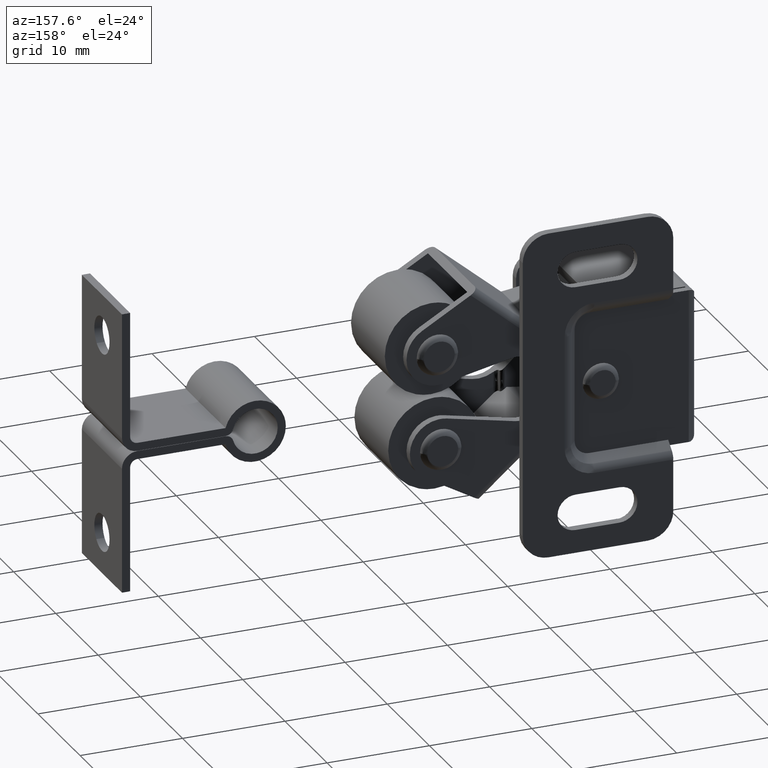
[diagram: clean part render]
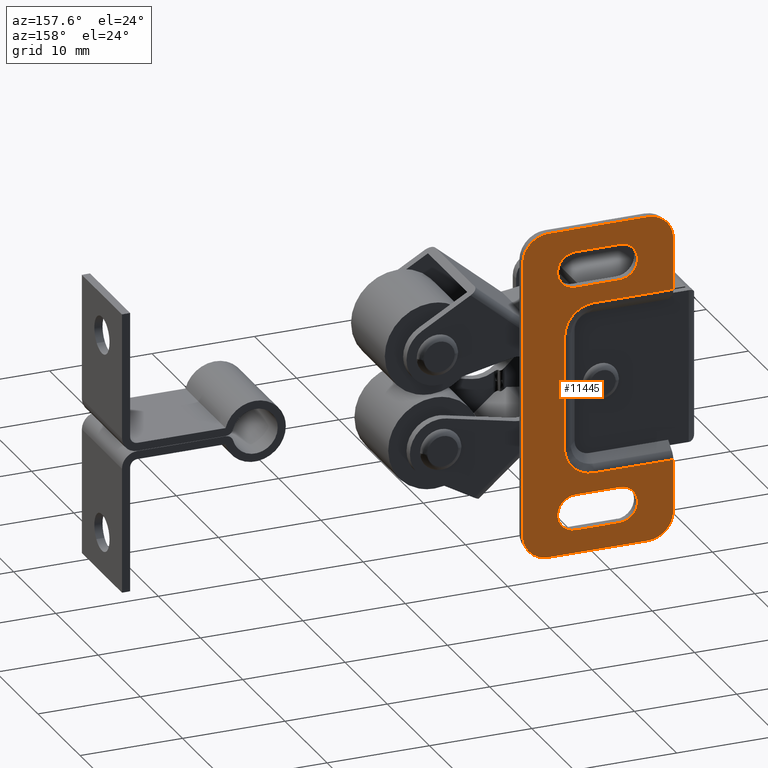
[diagram: same view with one face highlighted and labeled with its STEP entity id]
A machine part, auxiliary view. The second image highlights one B-rep face of the part: STEP entity #11445.
In plain terms, the highlighted face is a freeform B-spline surface patch.
Its self-contained STEP definition (entity closure, byte-faithful):
#10518=CARTESIAN_POINT('',(15.0,7.500000000000200,16.0));
#10519=VERTEX_POINT('',#10518);
#10520=CARTESIAN_POINT('',(17.500000000000000,7.500000000000200,13.500000000000000));
#10521=VERTEX_POINT('',#10520);
#10522=CARTESIAN_POINT('',(15.0,7.500000000000200,16.0));
#10523=CARTESIAN_POINT('',(15.286364359041050,7.500000000000211,16.000192427718009));
#10524=CARTESIAN_POINT('',(15.787339908738760,7.500000000000137,15.912943258176711));
#10525=CARTESIAN_POINT('',(16.411695875033029,7.500000000000220,15.593792375405410));
#10526=CARTESIAN_POINT('',(16.892539337064829,7.500000000000146,15.173887625152391));
#10527=CARTESIAN_POINT('',(17.225298078750320,7.500000000000171,14.688827998041139));
#10528=CARTESIAN_POINT('',(17.447172271846590,7.500000000000211,14.113556537717169));
#10529=CARTESIAN_POINT('',(17.500072212093890,7.500000000000188,13.724989760844030));
#10530=CARTESIAN_POINT('',(17.500000000000000,7.500000000000200,13.500000000000000));
#10531=B_SPLINE_CURVE_WITH_KNOTS('',3,(#10522,#10523,#10524,#10525,#10526,#10527,#10528,#10529,#10530),.UNSPECIFIED.,.F.,.U.,(4,1,1,1,1,1,4),(0.000000093626884,0.859031573901933,1.503324657829756,2.086208161121988,2.761178339133837,3.252063056334594,3.927015457196625),.UNSPECIFIED.);
#10532=EDGE_CURVE('',#10519,#10521,#10531,.T.);
#10578=CARTESIAN_POINT('',(2.800003000000105,7.500000000000200,13.500000000000000));
#10579=VERTEX_POINT('',#10578);
#10580=CARTESIAN_POINT('',(5.300003000000100,7.500000000000200,16.0));
#10581=VERTEX_POINT('',#10580);
#10582=CARTESIAN_POINT('',(2.800003000000105,7.500000000000200,13.500000000000000));
#10583=CARTESIAN_POINT('',(2.799993274128616,7.500000000000198,13.653393603655740));
#10584=CARTESIAN_POINT('',(2.831134984212427,7.500000000000195,13.990872199678970));
#10585=CARTESIAN_POINT('',(2.977490472272864,7.500000000000175,14.473322469147091));
#10586=CARTESIAN_POINT('',(3.264828905089107,7.500000000000181,14.995520656740711));
#10587=CARTESIAN_POINT('',(3.665844866090415,7.500000000000183,15.427237225760960));
#10588=CARTESIAN_POINT('',(4.159148713907764,7.500000000000181,15.743754545026491));
#10589=CARTESIAN_POINT('',(4.686446625940715,7.500000000000193,15.947166839191910));
#10590=CARTESIAN_POINT('',(5.075012047667549,7.500000000000191,16.000079009948539));
#10591=CARTESIAN_POINT('',(5.300003000000100,7.500000000000200,16.0));
#10592=B_SPLINE_CURVE_WITH_KNOTS('',3,(#10582,#10583,#10584,#10585,#10586,#10587,#10588,#10589,#10590,#10591),.UNSPECIFIED.,.F.,.U.,(4,1,1,1,1,1,1,4),(0.000000093619599,0.460185251630678,1.012433887369333,1.503324657827339,2.239625786401664,2.761178339133266,3.252063056334339,3.927015457196613),.UNSPECIFIED.);
#10593=EDGE_CURVE('',#10579,#10581,#10592,.T.);
#10639=CARTESIAN_POINT('',(5.300003000000100,7.500000000000200,-16.0));
#10640=VERTEX_POINT('',#10639);
#10641=CARTESIAN_POINT('',(2.800003000000105,7.500000000000200,-13.500000000000000));
#10642=VERTEX_POINT('',#10641);
#10643=CARTESIAN_POINT('',(5.300003000000100,7.500000000000200,-16.0));
#10644=CARTESIAN_POINT('',(5.105700094511433,7.500000000000199,-16.000039938621210));
#10645=CARTESIAN_POINT('',(4.768245326871917,7.500000000000176,-15.960448202411330));
#10646=CARTESIAN_POINT('',(4.251667516666283,7.500000000000170,-15.789833650864800));
#10647=CARTESIAN_POINT('',(3.815480421984535,7.500000000000170,-15.535602605517729));
#10648=CARTESIAN_POINT('',(3.414444545729188,7.500000000000161,-15.167580866215310));
#10649=CARTESIAN_POINT('',(3.064714875869248,7.500000000000149,-14.683983640821671));
#10650=CARTESIAN_POINT('',(2.844906125024445,7.500000000000239,-14.103381981033200));
#10651=CARTESIAN_POINT('',(2.799990668613424,7.500000000000147,-13.673843524522550));
#10652=CARTESIAN_POINT('',(2.800003000000105,7.500000000000200,-13.500000000000000));
#10653=B_SPLINE_CURVE_WITH_KNOTS('',3,(#10643,#10644,#10645,#10646,#10647,#10648,#10649,#10650,#10651,#10652),.UNSPECIFIED.,.F.,.U.,(4,1,1,1,1,1,1,4),(0.000000093620197,0.582904044599788,1.012433887369916,1.626037914768931,2.086208161121198,2.638460174722054,3.405472592294406,3.927015457196608),.UNSPECIFIED.);
#10654=EDGE_CURVE('',#10640,#10642,#10653,.T.);
#10699=CARTESIAN_POINT('',(17.500000000000000,7.500000000000200,-13.500000000000000));
#10700=VERTEX_POINT('',#10699);
#10701=CARTESIAN_POINT('',(15.0,7.500000000000200,-16.0));
#10702=VERTEX_POINT('',#10701);
#10703=CARTESIAN_POINT('',(17.500000000000000,7.500000000000200,-13.500000000000000));
#10704=CARTESIAN_POINT('',(17.500044445175408,7.500000000000202,-13.694304060719141));
#10705=CARTESIAN_POINT('',(17.460430479872461,7.500000000000185,-14.031748134046641));
#10706=CARTESIAN_POINT('',(17.273804554259080,7.500000000000166,-14.597113680800719));
#10707=CARTESIAN_POINT('',(16.955828022843530,7.500000000000182,-15.106064261523700));
#10708=CARTESIAN_POINT('',(16.485405256964370,7.500000000000167,-15.537627719186959));
#10709=CARTESIAN_POINT('',(16.010927514237899,7.500000000000187,-15.806405735201880));
#10710=CARTESIAN_POINT('',(15.511313099867669,7.500000000000142,-15.964657008544140));
#10711=CARTESIAN_POINT('',(15.173848092341689,7.500000000000210,-16.000023302451531));
#10712=CARTESIAN_POINT('',(15.0,7.500000000000200,-16.0));
#10713=B_SPLINE_CURVE_WITH_KNOTS('',3,(#10703,#10704,#10705,#10706,#10707,#10708,#10709,#10710,#10711,#10712),.UNSPECIFIED.,.F.,.U.,(4,1,1,1,1,1,1,4),(0.000000093621064,0.582904044600343,1.012433887370199,1.779451322858204,2.362333669887484,2.914581553612443,3.405472592294414,3.927015457196622),.UNSPECIFIED.);
#10714=EDGE_CURVE('',#10700,#10702,#10713,.T.);
#10752=CARTESIAN_POINT('',(12.350006000000000,7.500000000000200,10.250000000000000));
#10753=VERTEX_POINT('',#10752);
#10759=CARTESIAN_POINT('',(8.050003030543241,7.500000000000000,10.250000000000000));
#10760=VERTEX_POINT('',#10759);
#10761=CARTESIAN_POINT('',(8.050003030543241,7.500000000000000,10.250000000000000));
#10762=CARTESIAN_POINT('',(12.350006000000000,7.500000000000200,10.250000000000000));
#10763=QUASI_UNIFORM_CURVE('',1,(#10761,#10762),.UNSPECIFIED.,.F.,.U.);
#10764=EDGE_CURVE('',#10760,#10753,#10763,.T.);
#10800=CARTESIAN_POINT('',(6.300003000000000,7.499999999999999,11.999999995656850));
#10801=VERTEX_POINT('',#10800);
#10802=CARTESIAN_POINT('',(6.300003000000000,7.499999999999999,11.999999995656850));
#10803=CARTESIAN_POINT('',(6.299844040270610,7.500000000000002,11.799532860111180));
#10804=CARTESIAN_POINT('',(6.349763944044633,7.499999999999984,11.513296306718450));
#10805=CARTESIAN_POINT('',(6.512688185877785,7.500000000000015,11.145812009281100));
#10806=CARTESIAN_POINT('',(6.688508365383500,7.499999999999993,10.882648974007440));
#10807=CARTESIAN_POINT('',(6.922486888998194,7.500000000000000,10.648691931740810));
#10808=CARTESIAN_POINT('',(7.195017562538005,7.500000000000023,10.461709970379850));
#10809=CARTESIAN_POINT('',(7.563275677617749,7.499999999999965,10.298434586915500));
#10810=CARTESIAN_POINT('',(7.863866579505843,7.500000000000028,10.249899275661329));
#10811=CARTESIAN_POINT('',(8.050003030543241,7.500000000000000,10.250000000000000));
#10812=B_SPLINE_CURVE_WITH_KNOTS('',3,(#10802,#10803,#10804,#10805,#10806,#10807,#10808,#10809,#10810,#10811),.UNSPECIFIED.,.F.,.U.,(4,1,1,1,1,1,1,4),(0.000000047595388,0.601334658014585,0.859058626618052,1.202681198041316,1.546277839256664,1.846950557402861,2.190583304770051,2.748962567353600),.UNSPECIFIED.);
#10813=EDGE_CURVE('',#10801,#10760,#10812,.T.);
#10815=CARTESIAN_POINT('',(8.050003000000000,7.500000000000000,13.750000000000000));
#10816=VERTEX_POINT('',#10815);
#10817=CARTESIAN_POINT('',(8.050003000000000,7.500000000000000,13.750000000000000));
#10818=CARTESIAN_POINT('',(7.849549406468809,7.500000000000004,13.750127609910029));
#10819=CARTESIAN_POINT('',(7.448740001295882,7.499999999999996,13.680384003729330));
#10820=CARTESIAN_POINT('',(6.993617437993758,7.500000000000004,13.422649232558239));
#10821=CARTESIAN_POINT('',(6.678355270521767,7.499999999999996,13.107156008907410));
#10822=CARTESIAN_POINT('',(6.458343832088691,7.500000000000006,12.769111292909720));
#10823=CARTESIAN_POINT('',(6.326771394923079,7.499999999999999,12.386565433923669));
#10824=CARTESIAN_POINT('',(6.299993802596385,7.499999999999999,12.114531175847819));
#10825=CARTESIAN_POINT('',(6.300003000000000,7.499999999999999,11.999999995656850));
#10826=B_SPLINE_CURVE_WITH_KNOTS('',3,(#10817,#10818,#10819,#10820,#10821,#10822,#10823,#10824,#10825),.UNSPECIFIED.,.F.,.U.,(4,1,1,1,1,1,4),(0.000000047608833,0.601334655331386,1.202681192672064,1.546277832342248,1.932860579251838,2.405357078268964,2.748962555034370),.UNSPECIFIED.);
#10827=EDGE_CURVE('',#10816,#10801,#10826,.T.);
#10871=CARTESIAN_POINT('',(12.350006000000000,7.500000000000000,13.750000000000000));
#10872=VERTEX_POINT('',#10871);
#10873=CARTESIAN_POINT('',(12.350006000000000,7.500000000000000,13.750000000000000));
#10874=CARTESIAN_POINT('',(8.050003000000000,7.500000000000000,13.750000000000000));
#10875=QUASI_UNIFORM_CURVE('',1,(#10873,#10874),.UNSPECIFIED.,.F.,.U.);
#10876=EDGE_CURVE('',#10872,#10816,#10875,.T.);
#10912=CARTESIAN_POINT('',(14.100005999999480,7.500000000000000,12.000001351837810));
#10913=VERTEX_POINT('',#10912);
#10914=CARTESIAN_POINT('',(14.100005999999480,7.500000000000000,12.000001351837810));
#10915=CARTESIAN_POINT('',(14.100043963686140,7.499999999999999,12.143174588794221));
#10916=CARTESIAN_POINT('',(14.068196209507910,7.499999999999974,12.400867107856151));
#10917=CARTESIAN_POINT('',(13.942171264630939,7.499999999999972,12.753033833588651));
#10918=CARTESIAN_POINT('',(13.720398502605690,7.499999999999961,13.123329089225541));
#10919=CARTESIAN_POINT('',(13.373144196966161,7.499999999999967,13.453894904690150));
#10920=CARTESIAN_POINT('',(12.879682399146519,7.499999999999961,13.694658472255799));
#10921=CARTESIAN_POINT('',(12.536139609365790,7.500000000000000,13.750092091643969));
#10922=CARTESIAN_POINT('',(12.350006000000000,7.500000000000000,13.750000000000000));
#10923=B_SPLINE_CURVE_WITH_KNOTS('',3,(#10914,#10915,#10916,#10917,#10918,#10919,#10920,#10921,#10922),.UNSPECIFIED.,.F.,.U.,(4,1,1,1,1,1,4),(0.000000048541498,0.429521300534117,0.773149262181103,1.116778503429260,1.718086318133064,2.190582685528905,2.748961790649044),.UNSPECIFIED.);
#10924=EDGE_CURVE('',#10913,#10872,#10923,.T.);
#10926=CARTESIAN_POINT('',(12.350006000000000,7.500000000000200,10.250000000000000));
#10927=CARTESIAN_POINT('',(12.493178366209561,7.500000000000185,10.249967428030370));
#10928=CARTESIAN_POINT('',(12.750873820755210,7.500000000000201,10.281804254390959));
#10929=CARTESIAN_POINT('',(13.103038652149801,7.500000000000154,10.407835816298959));
#10930=CARTESIAN_POINT('',(13.473331231629849,7.500000000000023,10.629616861615480));
#10931=CARTESIAN_POINT('',(13.763829546071930,7.500000000000258,10.934755659843839));
#10932=CARTESIAN_POINT('',(13.971625597520610,7.499999999999948,11.312516727980110));
#10933=CARTESIAN_POINT('',(14.076036834354211,7.499999999999897,11.642077334571310));
#10934=CARTESIAN_POINT('',(14.100019123951300,7.500000000000128,11.885469064695650));
#10935=CARTESIAN_POINT('',(14.100005999999480,7.500000000000000,12.000001351837810));
#10936=B_SPLINE_CURVE_WITH_KNOTS('',3,(#10926,#10927,#10928,#10929,#10930,#10931,#10932,#10933,#10934,#10935),.UNSPECIFIED.,.F.,.U.,(4,1,1,1,1,1,1,4),(0.000000046685173,0.429521537306341,0.773149689322664,1.116779120351162,1.718087270682433,2.018769563416735,2.405357742947194,2.748963314523376),.UNSPECIFIED.);
#10937=EDGE_CURVE('',#10753,#10913,#10936,.T.);
#10977=CARTESIAN_POINT('',(12.350006000000000,7.500000000000200,-13.750000000000000));
#10978=VERTEX_POINT('',#10977);
#10984=CARTESIAN_POINT('',(8.050003030543241,7.500000000000000,-13.750000000000000));
#10985=VERTEX_POINT('',#10984);
#10986=CARTESIAN_POINT('',(8.050003030543241,7.500000000000000,-13.750000000000000));
#10987=CARTESIAN_POINT('',(12.350006000000000,7.500000000000200,-13.750000000000000));
#10988=QUASI_UNIFORM_CURVE('',1,(#10986,#10987),.UNSPECIFIED.,.F.,.U.);
#10989=EDGE_CURVE('',#10985,#10978,#10988,.T.);
#11025=CARTESIAN_POINT('',(6.300003000000000,7.499999999999999,-12.000000004343150));
#11026=VERTEX_POINT('',#11025);
#11027=CARTESIAN_POINT('',(6.300003000000000,7.499999999999999,-12.000000004343150));
#11028=CARTESIAN_POINT('',(6.299920043376861,7.499999999999994,-12.171816880337341));
#11029=CARTESIAN_POINT('',(6.342536764963867,7.500000000000009,-12.458108814938161));
#11030=CARTESIAN_POINT('',(6.507698694777678,7.499999999999998,-12.856848657605680));
#11031=CARTESIAN_POINT('',(6.765120226140053,7.499999999999996,-13.222527201107519));
#11032=CARTESIAN_POINT('',(7.138706171903277,7.500000000000016,-13.521516488455680));
#11033=CARTESIAN_POINT('',(7.591882394138827,7.499999999999972,-13.709127266767959));
#11034=CARTESIAN_POINT('',(7.892511963058009,7.500000000000044,-13.750052589615761));
#11035=CARTESIAN_POINT('',(8.050003030543241,7.500000000000000,-13.750000000000000));
#11036=B_SPLINE_CURVE_WITH_KNOTS('',3,(#11027,#11028,#11029,#11030,#11031,#11032,#11033,#11034,#11035),.UNSPECIFIED.,.F.,.U.,(4,1,1,1,1,1,4),(0.000000047592473,0.515430764799096,0.859058626616086,1.288581709666155,1.846950557401940,2.276493335289301,2.748962567353624),.UNSPECIFIED.);
#11037=EDGE_CURVE('',#11026,#10985,#11036,.T.);
#11039=CARTESIAN_POINT('',(8.050003000000000,7.500000000000000,-10.250000000000000));
#11040=VERTEX_POINT('',#11039);
#11041=CARTESIAN_POINT('',(8.050003000000000,7.500000000000000,-10.250000000000000));
#11042=CARTESIAN_POINT('',(7.906833043470302,7.500000000000004,-10.249973072930841));
#11043=CARTESIAN_POINT('',(7.591857913735456,7.500000000000003,-10.288845212978149));
#11044=CARTESIAN_POINT('',(7.110429757286054,7.500000000000012,-10.488110658805329));
#11045=CARTESIAN_POINT('',(6.725389003570122,7.499999999999985,-10.820300451537721));
#11046=CARTESIAN_POINT('',(6.474101372688513,7.500000000000019,-11.206761206351491));
#11047=CARTESIAN_POINT('',(6.333572898985183,7.499999999999994,-11.584820547735090));
#11048=CARTESIAN_POINT('',(6.299970036742235,7.500000000000008,-11.856828838977000));
#11049=CARTESIAN_POINT('',(6.300003000000000,7.499999999999999,-12.000000004343150));
#11050=B_SPLINE_CURVE_WITH_KNOTS('',3,(#11041,#11042,#11043,#11044,#11045,#11046,#11047,#11048,#11049),.UNSPECIFIED.,.F.,.U.,(4,1,1,1,1,1,4),(0.000000047610172,0.429521419300517,0.944967175035308,1.546277832342847,1.932860579252161,2.319448299945885,2.748962555034371),.UNSPECIFIED.);
#11051=EDGE_CURVE('',#11040,#11026,#11050,.T.);
#11095=CARTESIAN_POINT('',(12.350006000000000,7.500000000000000,-10.250000000000000));
#11096=VERTEX_POINT('',#11095);
#11097=CARTESIAN_POINT('',(12.350006000000000,7.500000000000000,-10.250000000000000));
#11098=CARTESIAN_POINT('',(8.050003000000000,7.500000000000000,-10.250000000000000));
#11099=QUASI_UNIFORM_CURVE('',1,(#11097,#11098),.UNSPECIFIED.,.F.,.U.);
#11100=EDGE_CURVE('',#11096,#11040,#11099,.T.);
#11136=CARTESIAN_POINT('',(14.100005999999480,7.500000000000000,-11.999998648162199));
#11137=VERTEX_POINT('',#11136);
#11138=CARTESIAN_POINT('',(14.100005999999480,7.500000000000000,-11.999998648162199));
#11139=CARTESIAN_POINT('',(14.100038208199109,7.499999999999990,-11.856826156049109));
#11140=CARTESIAN_POINT('',(14.068203939572189,7.499999999999976,-11.599131037440721));
#11141=CARTESIAN_POINT('',(13.951873837269179,7.499999999999969,-11.274042532086670));
#11142=CARTESIAN_POINT('',(13.796188394271111,7.499999999999954,-10.999250485787471));
#11143=CARTESIAN_POINT('',(13.549834160486290,7.499999999999977,-10.698912861814181));
#11144=CARTESIAN_POINT('',(13.209060423671520,7.499999999999939,-10.452594140076879));
#11145=CARTESIAN_POINT('',(12.779488278331060,7.500000000000022,-10.286990252214220));
#11146=CARTESIAN_POINT('',(12.507495694419370,7.499999999999908,-10.249947395494830));
#11147=CARTESIAN_POINT('',(12.350006000000000,7.500000000000000,-10.250000000000000));
#11148=B_SPLINE_CURVE_WITH_KNOTS('',3,(#11138,#11139,#11140,#11141,#11142,#11143,#11144,#11145,#11146,#11147),.UNSPECIFIED.,.F.,.U.,(4,1,1,1,1,1,1,4),(0.000000048538146,0.429521300531190,0.773149262178612,1.030873822679953,1.374480935769624,1.932860041479693,2.276492691729038,2.748961790649088),.UNSPECIFIED.);
#11149=EDGE_CURVE('',#11137,#11096,#11148,.T.);
#11151=CARTESIAN_POINT('',(12.350006000000000,7.500000000000200,-13.750000000000000));
#11152=CARTESIAN_POINT('',(12.550464104791750,7.500000000000182,-13.750118333532880));
#11153=CARTESIAN_POINT('',(12.865346844728521,7.500000000000182,-13.695288651956520));
#11154=CARTESIAN_POINT('',(13.255482271295270,7.500000000000121,-13.510683319642149));
#11155=CARTESIAN_POINT('',(13.579080912195201,7.500000000000124,-13.270781550967710));
#11156=CARTESIAN_POINT('',(13.845319247161051,7.500000000000043,-12.946342002766331));
#11157=CARTESIAN_POINT('',(14.049266355687260,7.500000000000042,-12.501046440423011));
#11158=CARTESIAN_POINT('',(14.100102800203160,7.500000000000047,-12.186130802632860));
#11159=CARTESIAN_POINT('',(14.100005999999480,7.500000000000000,-11.999998648162199));
#11160=B_SPLINE_CURVE_WITH_KNOTS('',3,(#11151,#11152,#11153,#11154,#11155,#11156,#11157,#11158,#11159),.UNSPECIFIED.,.F.,.U.,(4,1,1,1,1,1,4),(0.000000046683919,0.601334820676062,0.944967435313995,1.288582058285503,1.803996073012166,2.190583900463937,2.748963314523375),.UNSPECIFIED.);
#11161=EDGE_CURVE('',#10978,#11137,#11160,.T.);
#11200=CARTESIAN_POINT('',(15.0,7.500000000000200,16.0));
#11201=CARTESIAN_POINT('',(5.300003000000100,7.500000000000200,16.0));
#11202=QUASI_UNIFORM_CURVE('',1,(#11200,#11201),.UNSPECIFIED.,.F.,.U.);
#11203=EDGE_CURVE('',#10519,#10581,#11202,.T.);
#11226=CARTESIAN_POINT('',(17.500000000000000,7.500000000000200,-13.500000000000000));
#11227=CARTESIAN_POINT('',(17.500000000000000,7.500000000000200,13.500000000000000));
#11228=QUASI_UNIFORM_CURVE('',1,(#11226,#11227),.UNSPECIFIED.,.F.,.U.);
#11229=EDGE_CURVE('',#10700,#10521,#11228,.T.);
#11240=CARTESIAN_POINT('',(5.300003000000100,7.500000000000200,-16.0));
#11241=CARTESIAN_POINT('',(15.0,7.500000000000200,-16.0));
#11242=QUASI_UNIFORM_CURVE('',1,(#11240,#11241),.UNSPECIFIED.,.F.,.U.);
#11243=EDGE_CURVE('',#10640,#10702,#11242,.T.);
#11269=CARTESIAN_POINT('',(2.800003000000105,7.500000000000200,-8.410551698703232));
#11270=VERTEX_POINT('',#11269);
#11280=CARTESIAN_POINT('',(2.800003000000105,7.500000000000200,-8.410551698703232));
#11281=CARTESIAN_POINT('',(2.800003000000105,7.500000000000200,-13.500000000000000));
#11282=QUASI_UNIFORM_CURVE('',1,(#11280,#11281),.UNSPECIFIED.,.F.,.U.);
#11283=EDGE_CURVE('',#11270,#10642,#11282,.T.);
#11358=CARTESIAN_POINT('',(2.065738178341556,7.500000000000200,17.598399937977788));
#11359=CARTESIAN_POINT('',(18.234265215943189,7.500000000000200,17.598399937977788));
#11360=CARTESIAN_POINT('',(2.065738178341556,7.500000000000200,-17.598400796284679));
#11361=CARTESIAN_POINT('',(18.234265215943189,7.500000000000200,-17.598400796284679));
#11362=B_SPLINE_SURFACE_WITH_KNOTS('',1,1,((#11358,#11360),(#11359,#11361)),.UNSPECIFIED.,.F.,.F.,.U.,(2,2),(2,2),(0.0,16.168527037601638),(0.0,35.196800734262467),.UNSPECIFIED.);
#11363=ORIENTED_EDGE('',*,*,#11283,.F.);
#11364=CARTESIAN_POINT('',(10.499999872127940,7.500000000000200,-8.410551698703232));
#11365=VERTEX_POINT('',#11364);
#11366=CARTESIAN_POINT('',(2.800003000000105,7.500000000000200,-8.410551698703232));
#11367=CARTESIAN_POINT('',(10.499999872127940,7.500000000000200,-8.410551698703232));
#11368=QUASI_UNIFORM_CURVE('',1,(#11366,#11367),.UNSPECIFIED.,.F.,.U.);
#11369=EDGE_CURVE('',#11270,#11365,#11368,.T.);
#11370=ORIENTED_EDGE('',*,*,#11369,.T.);
#11371=CARTESIAN_POINT('',(13.410551698703220,7.500000000000200,-5.500000000000000));
#11372=VERTEX_POINT('',#11371);
#11373=CARTESIAN_POINT('',(10.499999872127940,7.500000000000200,-8.410551698703232));
#11374=CARTESIAN_POINT('',(10.761936125804130,7.500000000000223,-8.410628830611760));
#11375=CARTESIAN_POINT('',(11.297675695938690,7.500000000000167,-8.337774714568679));
#11376=CARTESIAN_POINT('',(12.025214343767740,7.500000000000229,-8.020666063055639));
#11377=CARTESIAN_POINT('',(12.594098391798161,7.500000000000176,-7.559510859248706));
#11378=CARTESIAN_POINT('',(12.974017246392110,7.500000000000224,-7.066410705464845));
#11379=CARTESIAN_POINT('',(13.226550685987201,7.500000000000155,-6.564727030472733));
#11380=CARTESIAN_POINT('',(13.376484813212709,7.500000000000345,-6.047670067739518));
#11381=CARTESIAN_POINT('',(13.410566233647280,7.500000000000020,-5.678589726383200));
#11382=CARTESIAN_POINT('',(13.410551698703220,7.500000000000200,-5.500000000000000));
#11383=B_SPLINE_CURVE_WITH_KNOTS('',3,(#11373,#11374,#11375,#11376,#11377,#11378,#11379,#11380,#11381,#11382),.UNSPECIFIED.,.F.,.U.,(4,1,1,1,1,1,1,4),(0.000000089912126,0.785796592594765,1.607325380286952,2.357373881678787,2.964587952266027,3.464653468789387,4.036141869192703,4.571912675979148),.UNSPECIFIED.);
#11384=EDGE_CURVE('',#11365,#11372,#11383,.T.);
#11385=ORIENTED_EDGE('',*,*,#11384,.T.);
#11386=CARTESIAN_POINT('',(13.410551698703220,7.500000000000200,5.500000000000000));
#11387=VERTEX_POINT('',#11386);
#11388=CARTESIAN_POINT('',(13.410551698703220,7.500000000000200,-5.500000000000000));
#11389=CARTESIAN_POINT('',(13.410551698703220,7.500000000000200,5.500000000000000));
#11390=QUASI_UNIFORM_CURVE('',1,(#11388,#11389),.UNSPECIFIED.,.F.,.U.);
#11391=EDGE_CURVE('',#11372,#11387,#11390,.T.);
#11392=ORIENTED_EDGE('',*,*,#11391,.T.);
#11393=CARTESIAN_POINT('',(10.499999826274140,7.500000000000200,8.410551698703232));
#11394=VERTEX_POINT('',#11393);
#11395=CARTESIAN_POINT('',(13.410551698703220,7.500000000000200,5.500000000000000));
#11396=CARTESIAN_POINT('',(13.410637125252510,7.500000000000203,5.761937248498392));
#11397=CARTESIAN_POINT('',(13.347432446861299,7.500000000000204,6.226224603604338));
#11398=CARTESIAN_POINT('',(13.089226652707319,7.500000000000223,6.883627311307085));
#11399=CARTESIAN_POINT('',(12.736323433190581,7.500000000000192,7.397975254555004));
#11400=CARTESIAN_POINT('',(12.265979137726911,7.500000000000187,7.840306643232025));
#11401=CARTESIAN_POINT('',(11.764046663972170,7.500000000000289,8.145355758931038));
#11402=CARTESIAN_POINT('',(11.154801977307020,7.500000000000025,8.359114590516469));
#11403=CARTESIAN_POINT('',(10.738122707314989,7.500000000000250,8.410612284512476));
#11404=CARTESIAN_POINT('',(10.499999826274140,7.500000000000200,8.410551698703232));
#11405=B_SPLINE_CURVE_WITH_KNOTS('',3,(#11395,#11396,#11397,#11398,#11399,#11400,#11401,#11402,#11403,#11404),.UNSPECIFIED.,.F.,.U.,(4,1,1,1,1,1,1,4),(0.000000089903229,0.785796597032769,1.393006173400241,2.107370105710656,2.643134743899352,3.321778357973541,3.857553652359120,4.571912701823288),.UNSPECIFIED.);
#11406=EDGE_CURVE('',#11387,#11394,#11405,.T.);
#11407=ORIENTED_EDGE('',*,*,#11406,.T.);
#11408=CARTESIAN_POINT('',(2.800003000000105,7.500000000000200,8.410551698703232));
#11409=VERTEX_POINT('',#11408);
#11410=CARTESIAN_POINT('',(10.499999826274140,7.500000000000200,8.410551698703232));
#11411=CARTESIAN_POINT('',(2.800003000000105,7.500000000000200,8.410551698703232));
#11412=QUASI_UNIFORM_CURVE('',1,(#11410,#11411),.UNSPECIFIED.,.F.,.U.);
#11413=EDGE_CURVE('',#11394,#11409,#11412,.T.);
#11414=ORIENTED_EDGE('',*,*,#11413,.T.);
#11415=CARTESIAN_POINT('',(2.800003000000105,7.500000000000200,13.500000000000000));
#11416=CARTESIAN_POINT('',(2.800003000000105,7.500000000000200,8.410551698703232));
#11417=QUASI_UNIFORM_CURVE('',1,(#11415,#11416),.UNSPECIFIED.,.F.,.U.);
#11418=EDGE_CURVE('',#10579,#11409,#11417,.T.);
#11419=ORIENTED_EDGE('',*,*,#11418,.F.);
#11420=ORIENTED_EDGE('',*,*,#10593,.T.);
#11421=ORIENTED_EDGE('',*,*,#11203,.F.);
#11422=ORIENTED_EDGE('',*,*,#10532,.T.);
#11423=ORIENTED_EDGE('',*,*,#11229,.F.);
#11424=ORIENTED_EDGE('',*,*,#10714,.T.);
#11425=ORIENTED_EDGE('',*,*,#11243,.F.);
#11426=ORIENTED_EDGE('',*,*,#10654,.T.);
#11427=EDGE_LOOP('',(#11363,#11370,#11385,#11392,#11407,#11414,#11419,#11420,#11421,#11422,#11423,#11424,#11425,#11426));
#11428=FACE_OUTER_BOUND('',#11427,.T.);
#11429=ORIENTED_EDGE('',*,*,#11100,.T.);
#11430=ORIENTED_EDGE('',*,*,#11051,.T.);
#11431=ORIENTED_EDGE('',*,*,#11037,.T.);
#11432=ORIENTED_EDGE('',*,*,#10989,.T.);
#11433=ORIENTED_EDGE('',*,*,#11161,.T.);
#11434=ORIENTED_EDGE('',*,*,#11149,.T.);
#11435=EDGE_LOOP('',(#11429,#11430,#11431,#11432,#11433,#11434));
#11436=FACE_BOUND('',#11435,.T.);
#11437=ORIENTED_EDGE('',*,*,#10876,.T.);
#11438=ORIENTED_EDGE('',*,*,#10827,.T.);
#11439=ORIENTED_EDGE('',*,*,#10813,.T.);
#11440=ORIENTED_EDGE('',*,*,#10764,.T.);
#11441=ORIENTED_EDGE('',*,*,#10937,.T.);
#11442=ORIENTED_EDGE('',*,*,#10924,.T.);
#11443=EDGE_LOOP('',(#11437,#11438,#11439,#11440,#11441,#11442));
#11444=FACE_BOUND('',#11443,.T.);
#11445=ADVANCED_FACE('',(#11428,#11436,#11444),#11362,.T.);